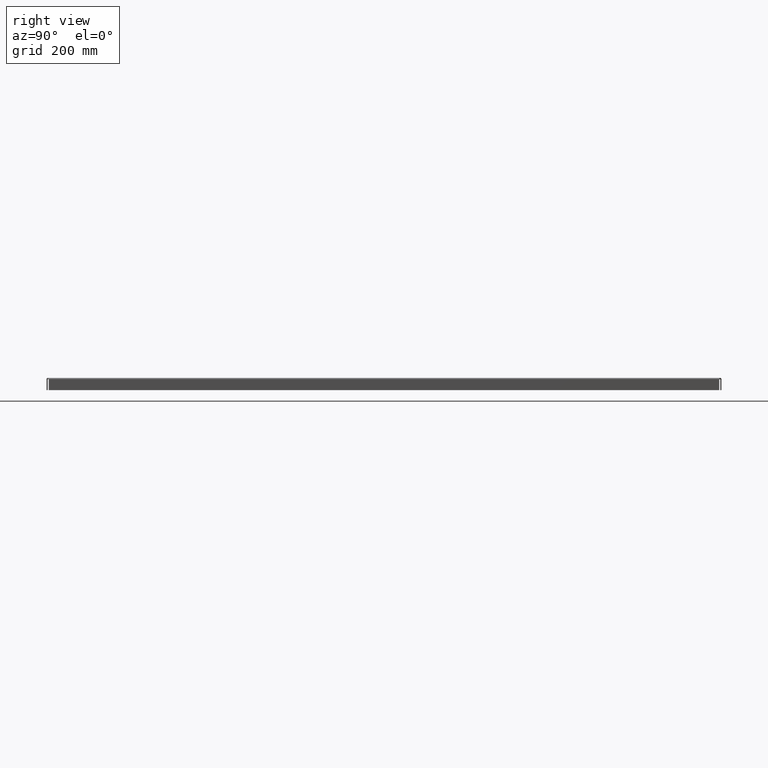
[diagram: clean part render]
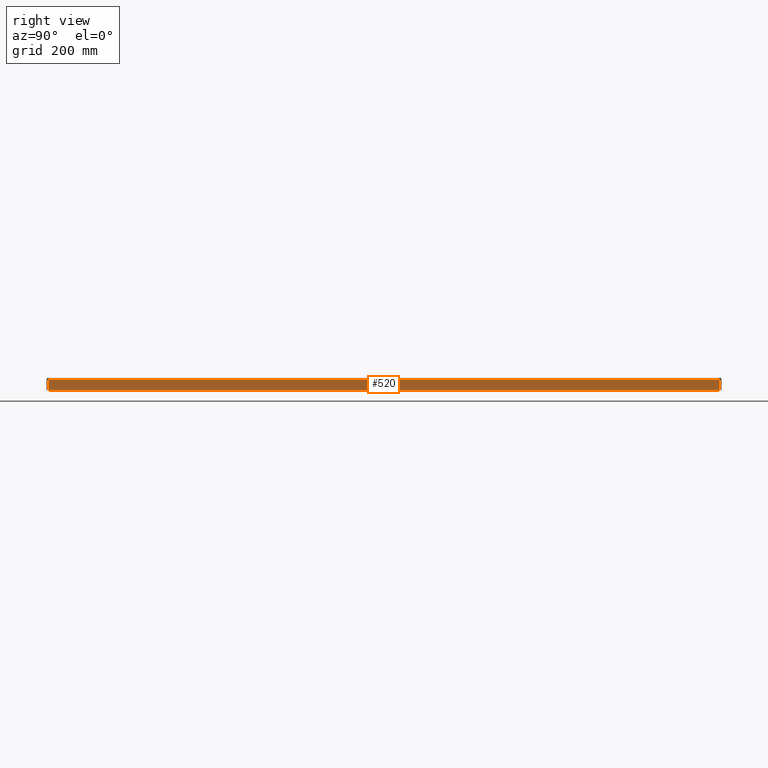
[diagram: same view with one face highlighted and labeled with its STEP entity id]
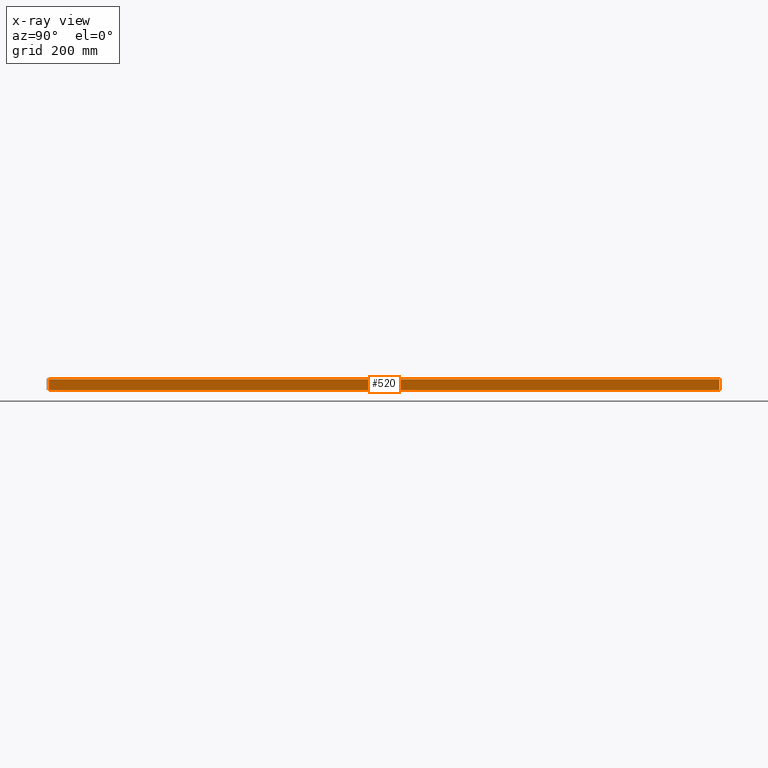
[diagram: x-ray of the same camera — body ghosted, the highlighted face saturated]
A machine part, right view. The second image highlights one B-rep face of the part: STEP entity #520.
The next image is the same camera in x-ray: the body ghosted, the highlighted face saturated — about 0% of this face is hidden behind the body in this view.
In plain terms, the highlighted planar face has unit normal (1, 0, 0).
Its self-contained STEP definition (entity closure, byte-faithful):
#247=CARTESIAN_POINT('',(19.999999999999996,47.839958739263764,-0.015599999999999));
#248=VERTEX_POINT('',#247);
#249=CARTESIAN_POINT('',(20.000000000000004,0.160041260736241,-0.015599999999999));
#250=VERTEX_POINT('',#249);
#251=CARTESIAN_POINT('',(19.999999999999996,47.839958739263764,-0.015599999999999));
#252=DIRECTION('',(0.0,-1.0,0.0));
#253=VECTOR('',#252,47.679917478527528);
#254=LINE('',#251,#253);
#255=EDGE_CURVE('',#248,#250,#254,.T.);
#335=CARTESIAN_POINT('',(20.000000000000007,0.160041260736244,-0.781249999999997));
#336=VERTEX_POINT('',#335);
#337=CARTESIAN_POINT('',(20.000000000000007,0.160041260736244,-0.781249999999997));
#338=DIRECTION('',(0.0,0.0,1.0));
#339=VECTOR('',#338,0.765649999999999);
#340=LINE('',#337,#339);
#341=EDGE_CURVE('',#336,#250,#340,.T.);
#473=CARTESIAN_POINT('',(20.0,47.83995873926375,-0.781249999999997));
#474=VERTEX_POINT('',#473);
#475=CARTESIAN_POINT('',(19.999999999999996,47.83995873926375,-0.015599999999999));
#476=DIRECTION('',(0.0,0.0,-1.0));
#477=VECTOR('',#476,0.765649999999999);
#478=LINE('',#475,#477);
#479=EDGE_CURVE('',#248,#474,#478,.T.);
#497=CARTESIAN_POINT('',(20.0,47.83995873926375,-0.781249999999997));
#498=DIRECTION('',(0.0,-1.0,0.0));
#499=VECTOR('',#498,47.679917478527507);
#500=LINE('',#497,#499);
#501=EDGE_CURVE('',#474,#336,#500,.T.);
#509=CARTESIAN_POINT('',(20.000000000000004,24.0,-0.362047006524195));
#510=DIRECTION('',(1.0,0.0,0.0));
#511=DIRECTION('',(0.0,0.0,-1.0));
#512=AXIS2_PLACEMENT_3D('',#509,#510,#511);
#513=PLANE('',#512);
#514=ORIENTED_EDGE('',*,*,#255,.T.);
#515=ORIENTED_EDGE('',*,*,#341,.F.);
#516=ORIENTED_EDGE('',*,*,#501,.F.);
#517=ORIENTED_EDGE('',*,*,#479,.F.);
#518=EDGE_LOOP('',(#514,#515,#516,#517));
#519=FACE_OUTER_BOUND('',#518,.T.);
#520=ADVANCED_FACE('',(#519),#513,.T.);